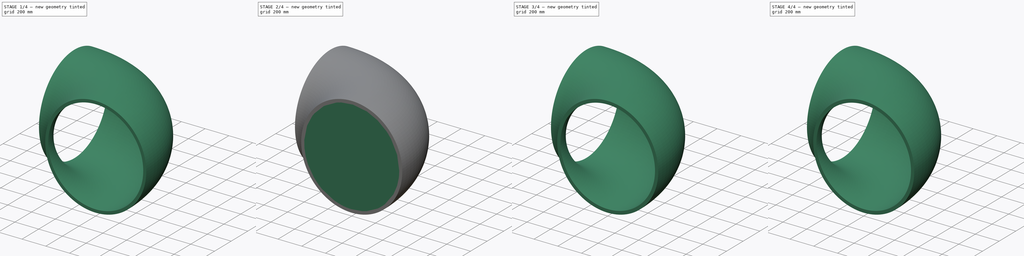
[diagram: build sequence overview — one tinted view per stage of 4, left to right]
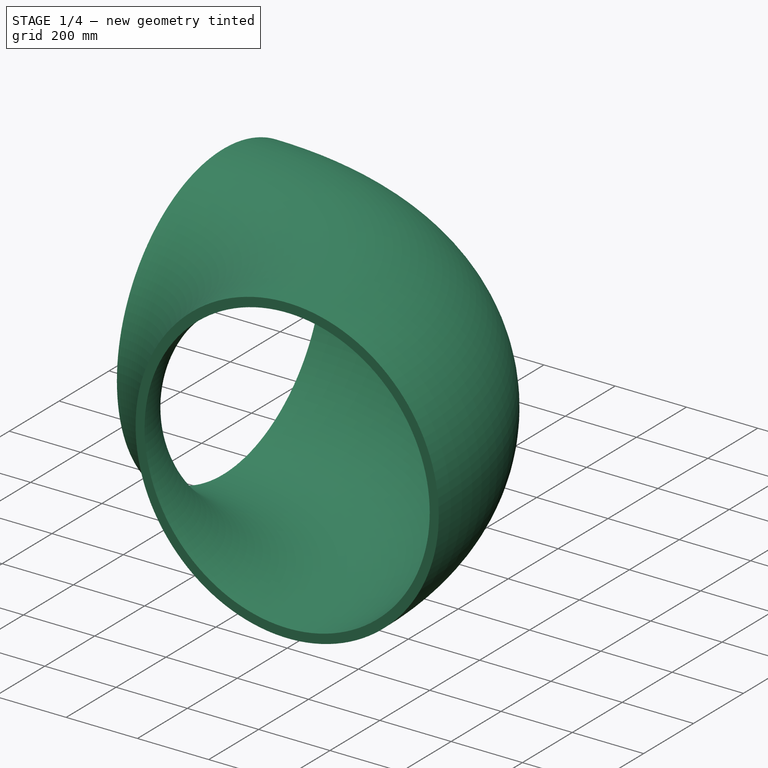
[diagram: stage 1 of 4 — iso view after this stage's code; geometry added in this stage tinted green]
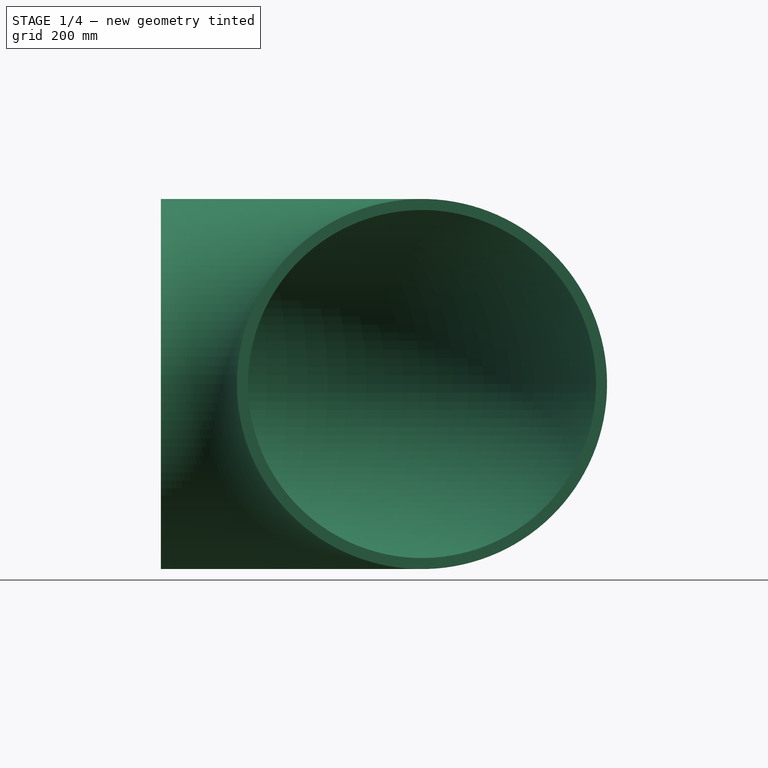
[diagram: stage 1 of 4 — front view after this stage's code; geometry added in this stage tinted green]
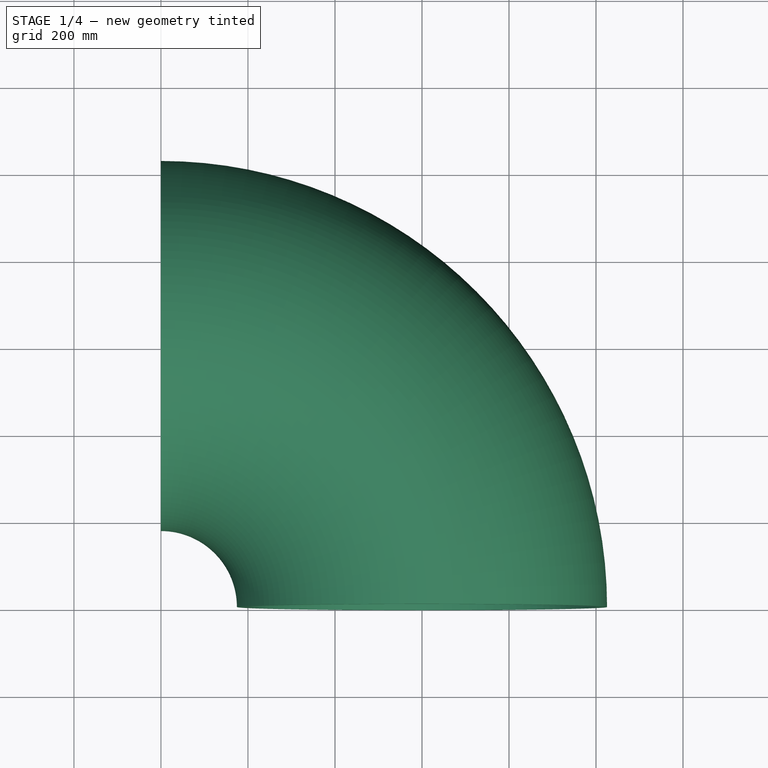
[diagram: stage 1 of 4 — top view after this stage's code; geometry added in this stage tinted green]
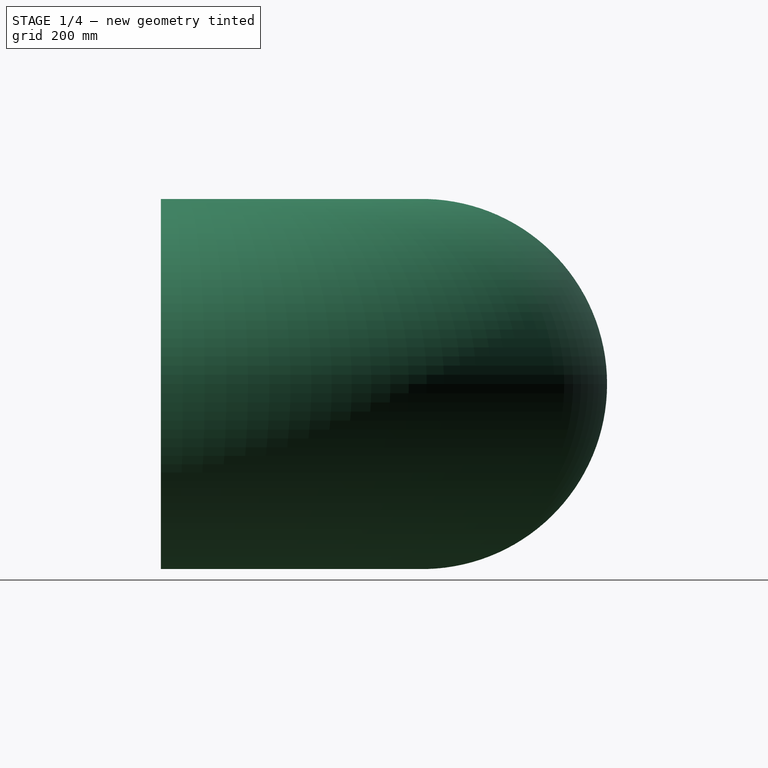
[diagram: stage 1 of 4 — right view after this stage's code; geometry added in this stage tinted green]
FCSTD DOCUMENT  (FreeCAD 0.16R6704 (Git))
Label: Circular_bend_reduction
License: All rights reserved
LicenseURL: http://en.wikipedia.org/wiki/All_rights_reserved
objects: App::DocumentObjectGroup×7, Sketcher::SketchObject×5, Part::FeaturePython×4, Part::Extrusion×3, Part::Sweep×2, Part::Thickness×2, Part::Compound×1, Spreadsheet::Sheet×1
note: 17 computed .brp shape members not serialized (recipe doc carries the construction recipe); baked Part::Feature solids carry a one-line shape summary decoded from their .brp

FEATURE [Sketcher::SketchObject] Sketch016  label="ANGLE_RADIUS_conector"
  expr: Constraints.Curvature_angle = Settings_circular_conection.a_curvature
  expr: Constraints.Axis_radius = Settings_circular_conection.r_axis
  sketch-geometry (3):
    g0: LineSegment [constr] StartX=0 StartY=0 StartZ=0 EndX=-6.2e-11 EndY=-600 EndZ=0
    g1: LineSegment [constr] StartX=-6.2e-11 StartY=-600 StartZ=0 EndX=600 EndY=-600 EndZ=0
    g2: ArcOfCircle CenterX=-6.2e-11 CenterY=-600 CenterZ=0 NormalX=0 NormalY=0 NormalZ=1 Radius=600 StartAngle=0 EndAngle=1.5708
  constraints (9):
    c: Coincident(g0,g1)
    c: Coincident(g2,g0)
    c: Coincident(g2,g0)
    c: Coincident(g2,g1)
    c: Angle(g0) = -1.5708
    c: Angle(g1,g0) = 1.5708  'Curvature_angle'
    c: Radius(g2) = 600  'Axis_radius'
    c: DistanceX(g-1,g0) = 0
    c: DistanceY(g0,g-1) = 0
FEATURE [Sketcher::SketchObject] Sketch017  label="RADIUS_circle_01"
  Placement = pos=(0,0,0) rot=(0.57735,0.57735,0.57735;2.0944rad)
  expr: Constraints.Radius_01 = Settings_circular_conection.r_side_1
  sketch-geometry (1):
    g0: Circle CenterX=0 CenterY=0 CenterZ=0 NormalX=0 NormalY=0 NormalZ=1 Radius=400
  constraints (3):
    c: Radius(g0) = 400  'Radius_01'
    c: DistanceY(g-1,g0) = 0  'Vertical_distance_axis'
    c: DistanceX(g-1,g0) = 0  'Horizontal_distance_axis'
FEATURE [Part::Sweep] Sweep006  label="Base_01 "
  Frenet = false
  Sections = -> [Sketch017]
  Solid = true
  Spine = -> Sketch016
  Transition = 1
FEATURE [Sketcher::SketchObject] Sketch028  label="RADIUS_circle_02"
  ExternalGeometry = -> [Sweep006]
  Placement = pos=(-6.2e-11,-600,0) rot=(1,0,0;1.5708rad)
  Support = -> Sweep006 [Face2]
  expr: Constraints.Horizontal_distance_axis = Settings_circular_conection.d_h_axis_02
  expr: Constraints.Vertical_distance_axis = Settings_circular_conection.d_v_axis_02
  expr: Constraints.Radius_02 = Settings_circular_conection.r_side_2
  sketch-geometry (1):
    g0: Circle CenterX=600 CenterY=0 CenterZ=0 NormalX=0 NormalY=0 NormalZ=1 Radius=400
  constraints (3):
    c: Radius(g0) = 400  'Radius_02'
    c: DistanceX(g-3,g0) = 0  'Horizontal_distance_axis'
    c: DistanceY(g-3,g0) = 0  'Vertical_distance_axis'
FEATURE [Part::Sweep] Sweep016  label="Base_02 "
  Frenet = true
  Sections = -> [Sketch017,Sketch028]
  Solid = true
  Spine = -> Sketch016 [Edge1]
  Transition = 1
FEATURE [Part::Thickness] Thickness011  label="02-Insulation_THICKNESS"
  Faces = -> Sweep016 [Face3,Face2]
  Intersection = false
  Join = 0
  Mode = 1
  SelfIntersection = false
  Value = 25.4
  expr: Value = Settings_circular_conection.insu_thickness
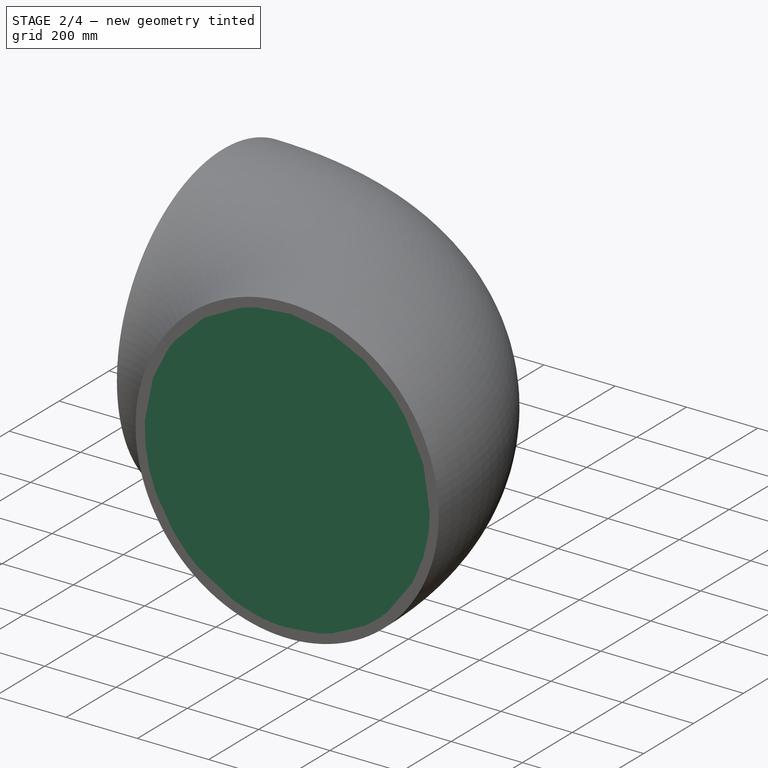
[diagram: stage 2 of 4 — iso view after this stage's code; geometry added in this stage tinted green]
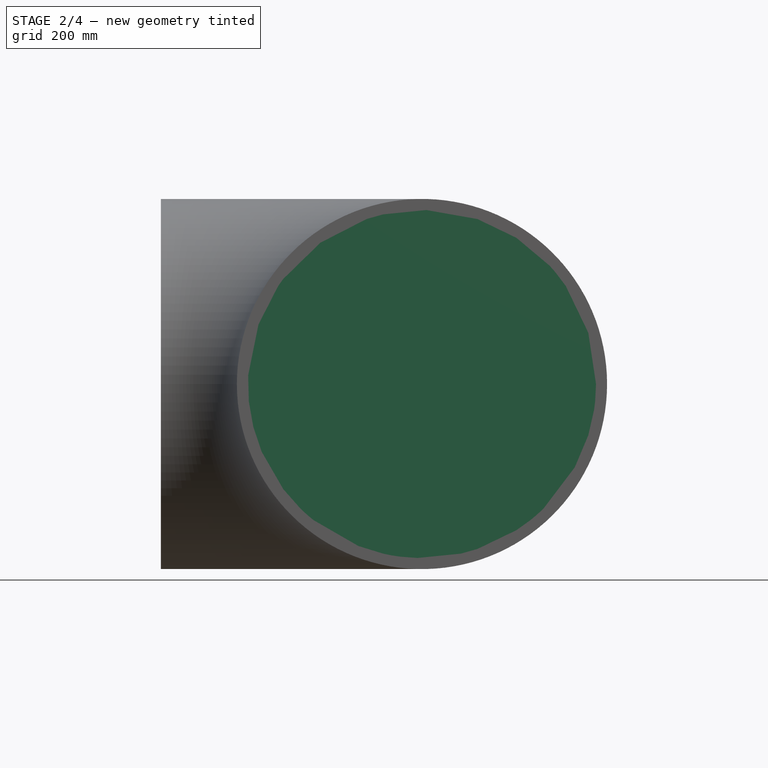
[diagram: stage 2 of 4 — front view after this stage's code; geometry added in this stage tinted green]
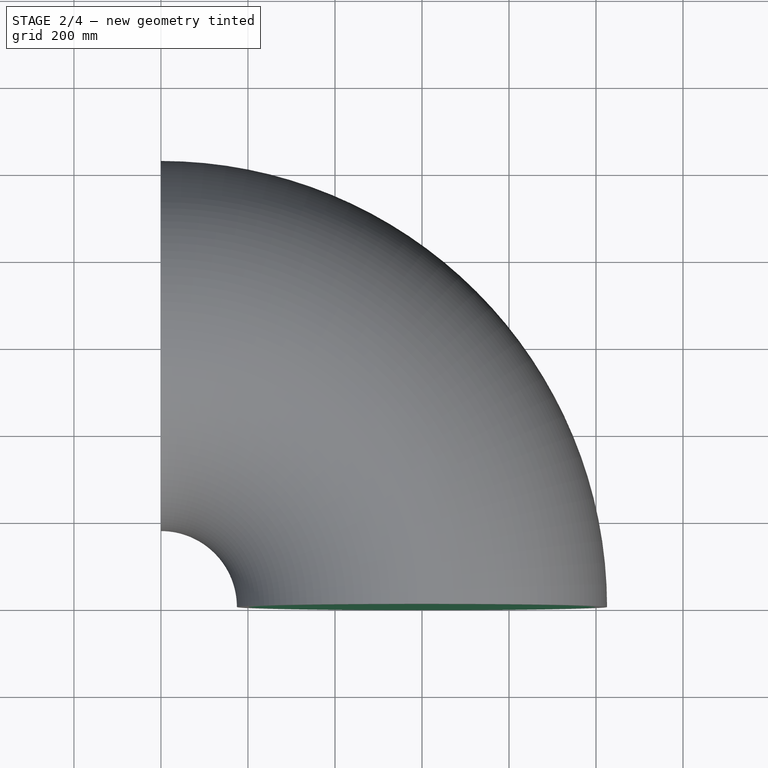
[diagram: stage 2 of 4 — top view after this stage's code; geometry added in this stage tinted green]
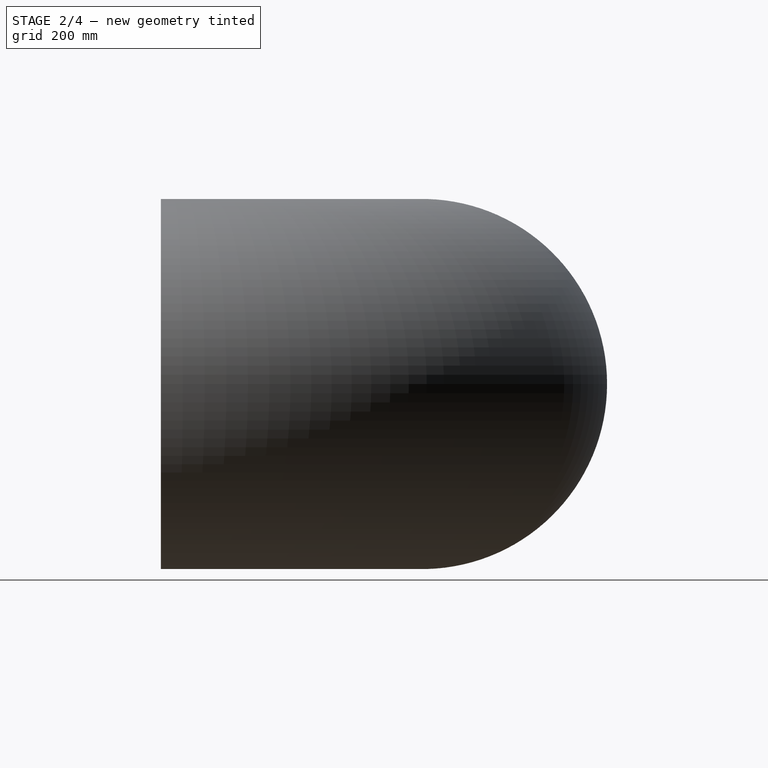
[diagram: stage 2 of 4 — right view after this stage's code; geometry added in this stage tinted green]
FEATURE [Part::Extrusion] Extrude_Sketch028  label="Base_flange_02 "
  Base = -> Sketch028
  Dir = (0,10,0)
  Solid = true
FEATURE [Sketcher::SketchObject] Sketch030  label="FLANGE_HEIGHT_01"
  ExternalGeometry = -> [Sweep006]
  Placement = pos=(0,0,0) rot=(-0.57735,0.57735,0.57735;4.18879rad)
  Support = -> Sweep006 [Face3]
  expr: Constraints.Flange_01 = Settings_circular_conection.flange_height
  sketch-geometry (4):
    g0: Circle CenterX=0 CenterY=0 CenterZ=0 NormalX=0 NormalY=0 NormalZ=1 Radius=400
    g1: Circle CenterX=0 CenterY=0 CenterZ=0 NormalX=0 NormalY=0 NormalZ=1 Radius=425
    g2: LineSegment [constr] StartX=-400 StartY=0 StartZ=0 EndX=-425 EndY=-5e-12 EndZ=0
    g3: LineSegment [constr] StartX=-400 StartY=0 StartZ=0 EndX=0 EndY=0 EndZ=0
  constraints (11):
    c: Coincident(g0,g-1)
    c: Coincident(g1,g-1)
    c: Equal(g0,g-3)
    c: PointOnObject(g2,g-3)
    c: PointOnObject(g2,g1)
    c: Angle(g2) = 3.14159
    c: DistanceY(g-1,g2) = 0
    c: DistanceX(g2,g2) = 25  'Flange_01'
    c: Coincident(g3,g2)
    c: Horizontal(g3)
    c: Coincident(g-1,g3)
FEATURE [App::DocumentObjectGroup] Grupo012  label="A-Bases "
  Group = -> [Sweep006,Sketch028,Extrude_Sketch028,Sketch029,Sketch030,Sketch016,Sweep016]
FEATURE [Part::Extrusion] Extrude_Sketch030  label="Flange_THICKNESS_01"
  Base = -> Sketch030
  Dir = (2,0,0)
  Solid = true
  expr: Dir.x = Settings_circular_conection.flange_thickness
FEATURE [Part::Thickness] Thickness010  label="1.1-Circular_bend_SHEET_THICKNESS"
  Faces = -> Sweep016 [Face3,Face2]
  Intersection = false
  Join = 0
  Mode = 1
  SelfIntersection = false
  Value = -2
  expr: Value = Settings_circular_conection.sheet_thickness * -1
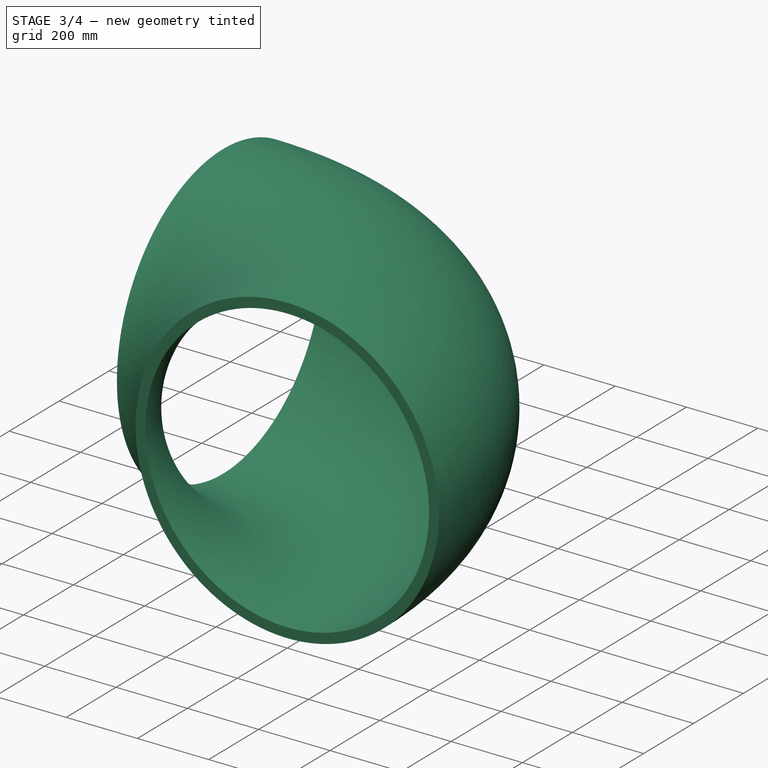
[diagram: stage 3 of 4 — iso view after this stage's code; geometry added in this stage tinted green]
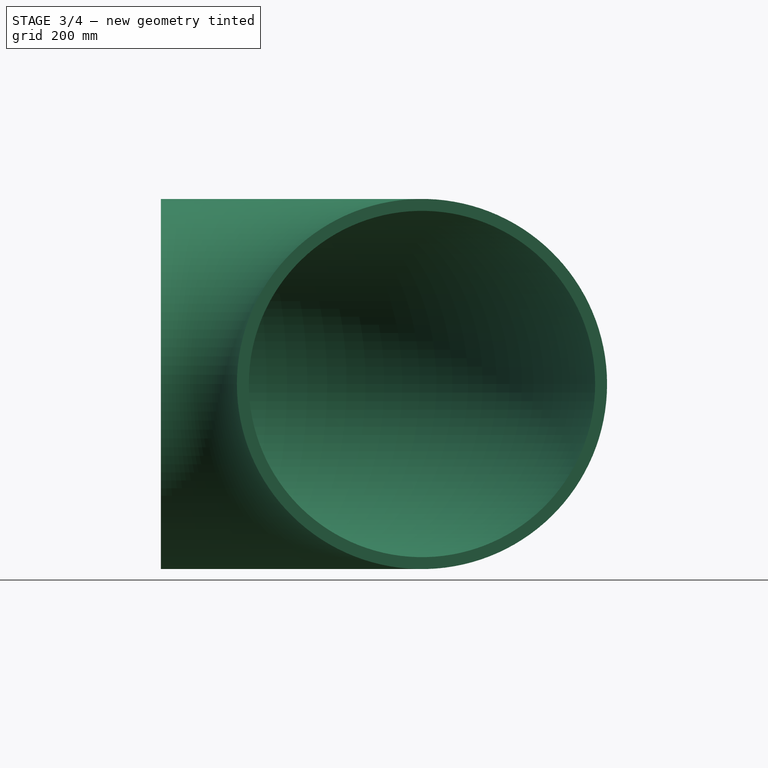
[diagram: stage 3 of 4 — front view after this stage's code; geometry added in this stage tinted green]
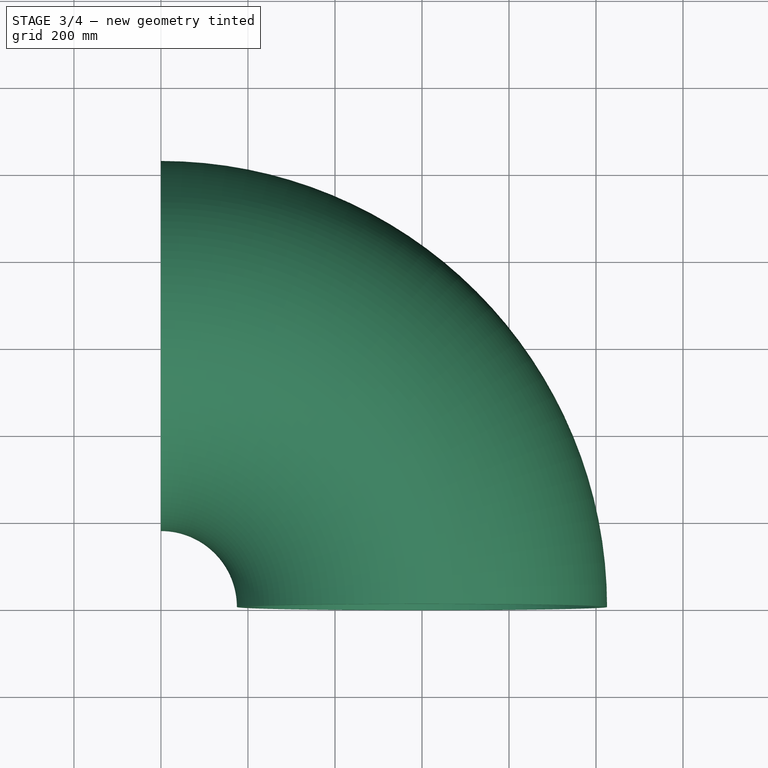
[diagram: stage 3 of 4 — top view after this stage's code; geometry added in this stage tinted green]
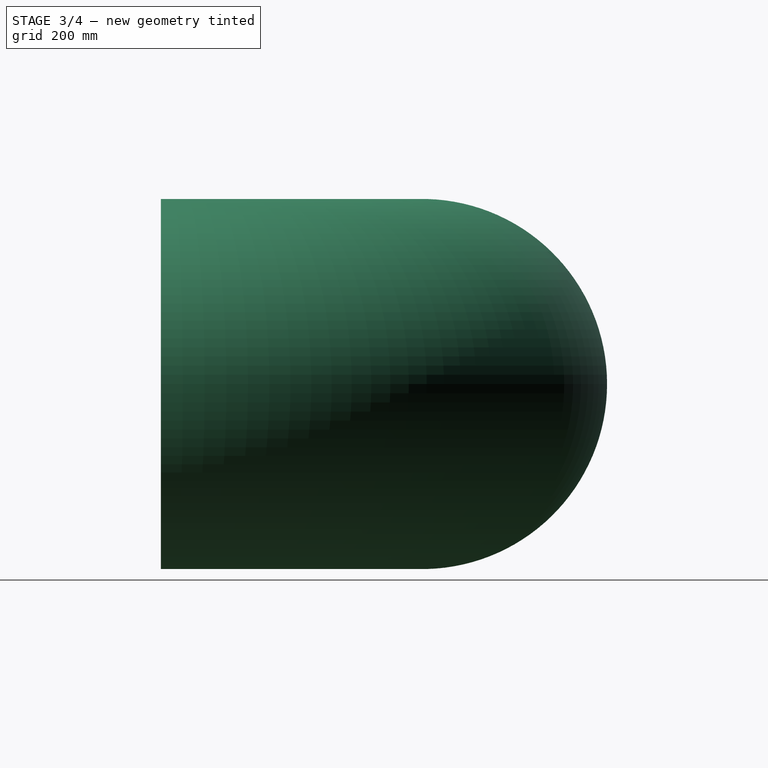
[diagram: stage 3 of 4 — right view after this stage's code; geometry added in this stage tinted green]
FEATURE [Sketcher::SketchObject] Sketch029  label="FLANGE_HEIGHT_02"
  ExternalGeometry = -> [Extrude_Sketch028]
  Placement = pos=(-6.2e-11,-600,0) rot=(1,0,0;1.5708rad)
  Support = -> Extrude_Sketch028 [Face2]
  expr: Constraints.Flange_02 = Settings_circular_conection.flange_height
  sketch-geometry (4):
    g0: Circle CenterX=600 CenterY=0 CenterZ=0 NormalX=0 NormalY=0 NormalZ=1 Radius=400
    g1: Circle CenterX=600 CenterY=0 CenterZ=0 NormalX=0 NormalY=0 NormalZ=1 Radius=425
    g2: LineSegment [constr] StartX=200 StartY=0 StartZ=0 EndX=175 EndY=5e-12 EndZ=0
    g3: LineSegment [constr] StartX=600 StartY=0 StartZ=0 EndX=200 EndY=0 EndZ=0
  constraints (10):
    c: Coincident(g0,g-3)
    c: Coincident(g1,g0)
    c: Equal(g-3,g0)
    c: PointOnObject(g2,g-3)
    c: PointOnObject(g2,g1)
    c: DistanceX(g2,g2) = 25  'Flange_02'
    c: Coincident(g3,g0)  'Constraint7'
    c: Coincident(g3,g2)
    c: Horizontal(g3)
    c: Angle(g2,g3) = 3.14159
FEATURE [Part::Extrusion] Extrude_Sketch029  label="Flange_THICKNESS_02"
  Base = -> Sketch029
  Dir = (0,2,0)
  Solid = true
  expr: Dir.y = Settings_circular_conection.flange_thickness
FEATURE [Part::Compound] Compound006  label="01-Circular_bend_flanges"
  Links = -> [Thickness010,Extrude_Sketch030,Extrude_Sketch029]
FEATURE [Part::FeaturePython] Clone020  label="Clone of 02-Insulation"  # Draft clone (typed FeaturePython)
  Objects = -> [Thickness011]
  Scale = (1,1,1)
FEATURE [App::DocumentObjectGroup] Grupo040  label="No_flanges"
  Group = -> [Clone019,Clone020]
FEATURE [App::DocumentObjectGroup] Grupo039  label="B-Final_parts_clones"
  Group = -> [Grupo040,Grupo041]
FEATURE [App::DocumentObjectGroup] Group014  label="A-Components"
  Group = -> [Grupo012,Grupo038]
FEATURE [Spreadsheet::Sheet] Spreadsheet006  label="Settings_circular_conection"
  cells = A1=Dimensionamento - Settings; A3=01. Lado 1 - Side 1; A4=1.1. Raio do lado 1 - Radius side 1:; B4(r_side_1)=400; C4=Alias: r_side_1; A6=02. Lado 2 - Side 2; A7=2.1. Raio do lado 2 - Radius side 2:; B7(r_side_2)=400; C7=Alias: r_side_2; A8=2.2. Distância horizontal do eixo - Horizontal distance axis:; B8(d_h_axis_02)=0; C8=Alias: d_h_axis_02; A9=2.3. Distância vertical do eixo - Vertical distance axis:; B9(d_v_axis_02)=0; C9=Alias: d_v_axis_02; A11=03. Ângulos e raios de curvaturas - Angles and curvature radius; A12=3.1. Ângulo da curvatura - Curvature angle:; B12(a_curvature)=90; C12=Alias: a_curvature; D12=Change only if r_side_1=r_side_2; A13=3.2. Raio do eixo - Axis radius:; B13(r_axis)=600; C13=Alias: r_axis; A15=04. Espessura da chapa - Sheet thickness:; B15(sheet_thickness)=2; C15=Alias: sheet_thickness; A17=05. Flanges; A18=5.1. Altura flanges - Flanges height:; B18(flange_height)=25; C18=Alias: flange_height; A19=5.2. Espessura flanges - Flanges thickness:; B19(flange_thickness)=2; C19=Alias: flange_thickness; A21=06. Espessura isolamento - Insulation thickness:; B21(insu_thickness)=25.4; C21=Alias: insu_thickness; D21=It was not possible to make the difference between the gross volume of the insulation and the flanges.
FEATURE [App::DocumentObjectGroup] Grupo006  label="Circular_bend_reduction"
  Group = -> [Spreadsheet006,Group014,Grupo039]
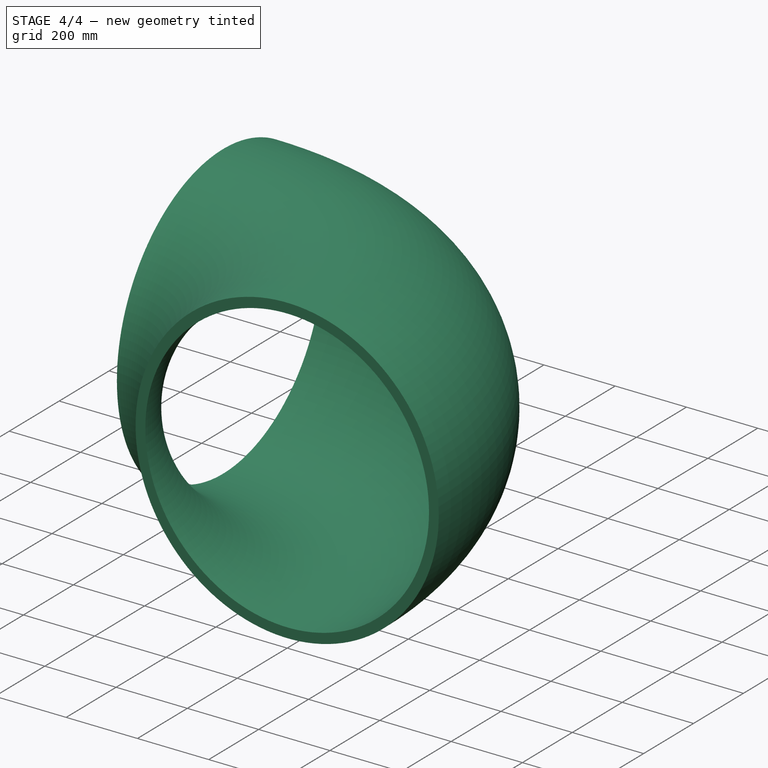
[diagram: stage 4 of 4 — iso view after this stage's code; geometry added in this stage tinted green]
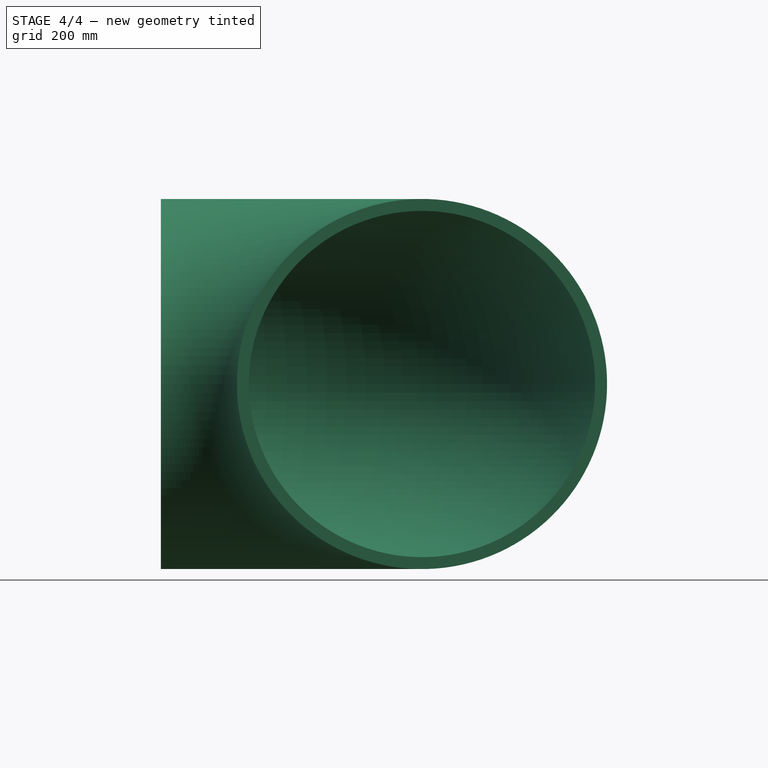
[diagram: stage 4 of 4 — front view after this stage's code; geometry added in this stage tinted green]
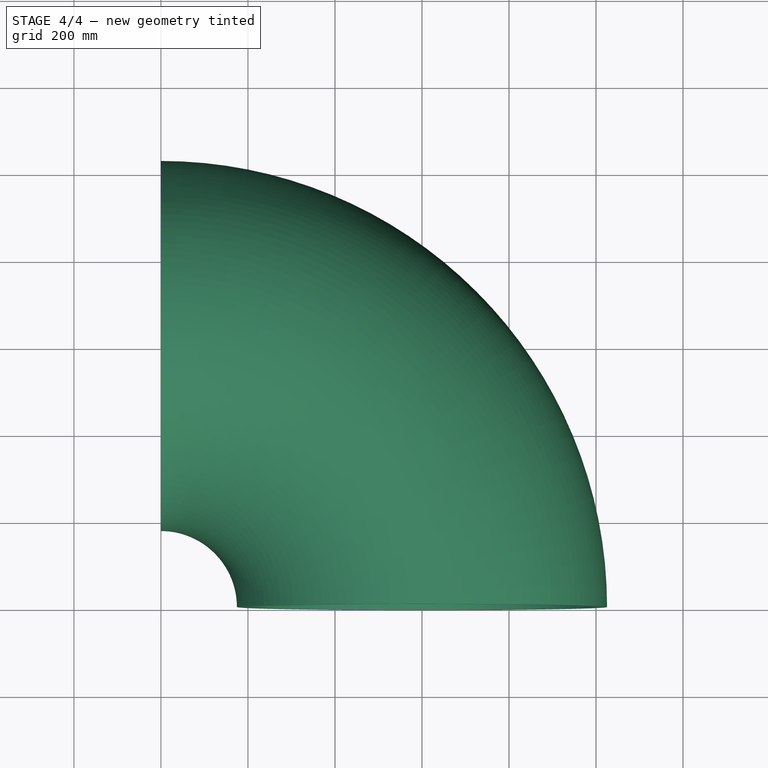
[diagram: stage 4 of 4 — top view after this stage's code; geometry added in this stage tinted green]
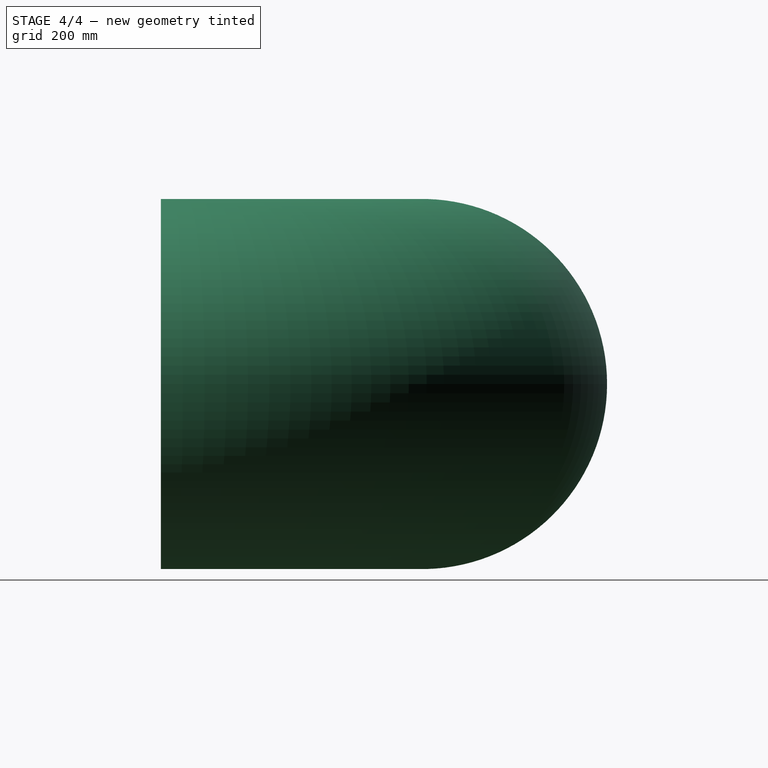
[diagram: stage 4 of 4 — right view after this stage's code; geometry added in this stage tinted green]
FEATURE [App::DocumentObjectGroup] Grupo038  label="B-Parts"
  Group = -> [Compound006,Thickness011]
FEATURE [Part::FeaturePython] Clone017  label="Clone of 01-Circular_bend_flanges"  # Draft clone (typed FeaturePython)
  Objects = -> [Compound006]
  Scale = (1,1,1)
FEATURE [Part::FeaturePython] Clone018  label="Clone of 02-Insulation001"  # Draft clone (typed FeaturePython)
  Objects = -> [Thickness011]
  Scale = (1,1,1)
FEATURE [App::DocumentObjectGroup] Grupo041  label="Flanges"
  Group = -> [Clone017,Clone018]
FEATURE [Part::FeaturePython] Clone019  label="Clone of 1.1-Circular_bend_SHEET_THICKNESS"  # Draft clone (typed FeaturePython)
  Objects = -> [Thickness010]
  Scale = (1,1,1)
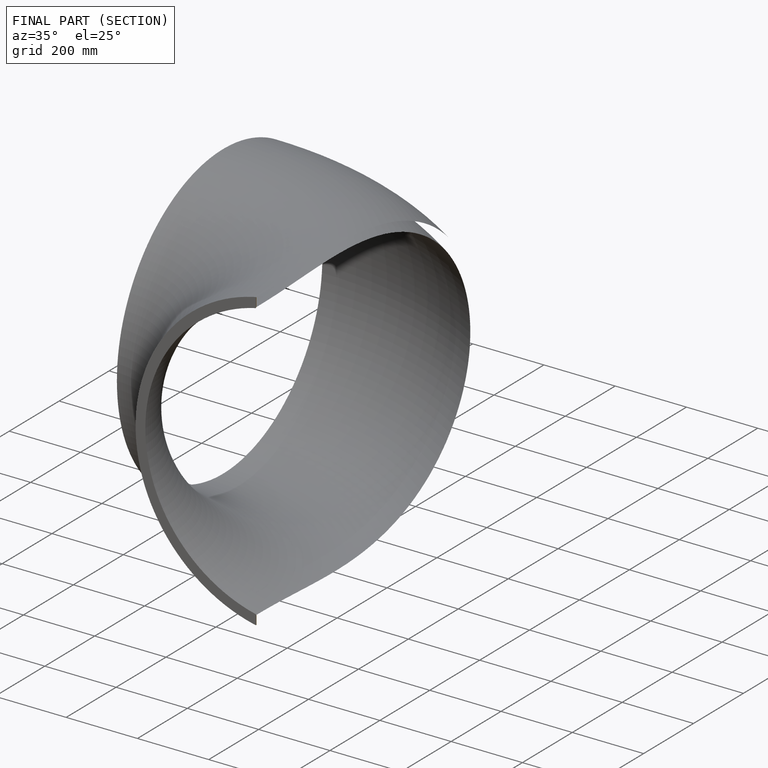
[diagram: finished part — half-section view (interior)]
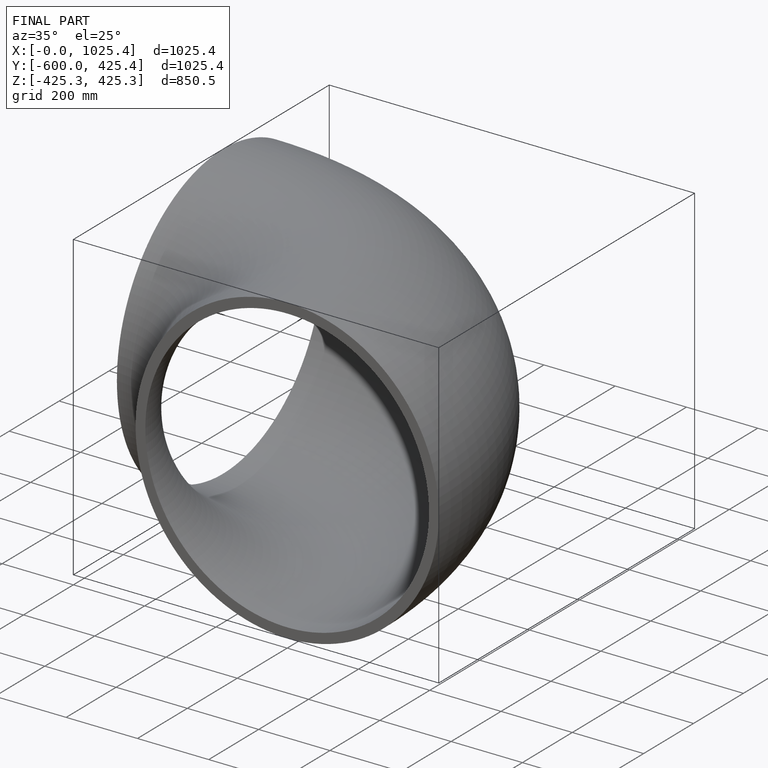
[diagram: finished part — iso view with bounding-box wireframe]
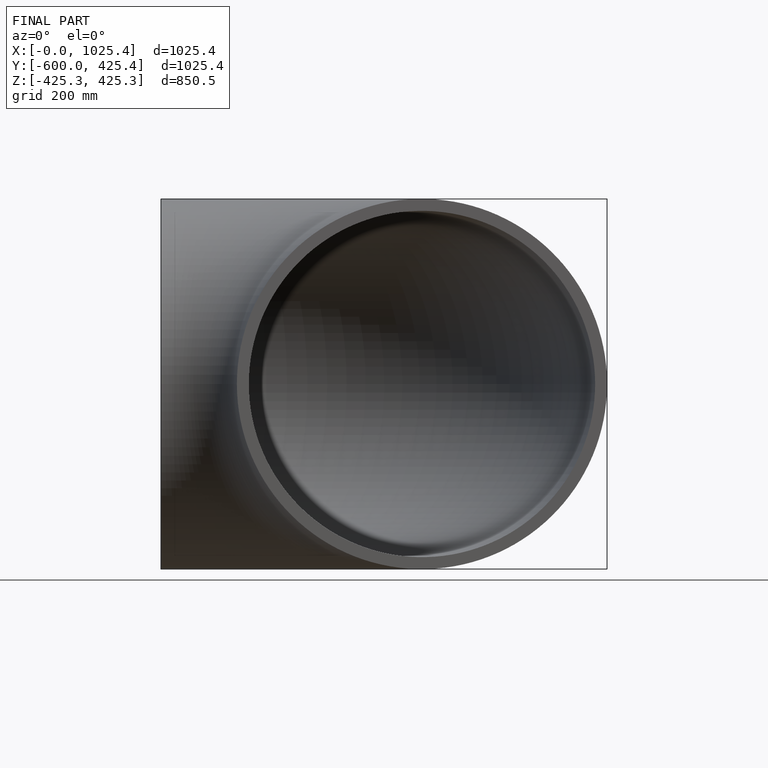
[diagram: finished part — front view with bounding-box wireframe]
